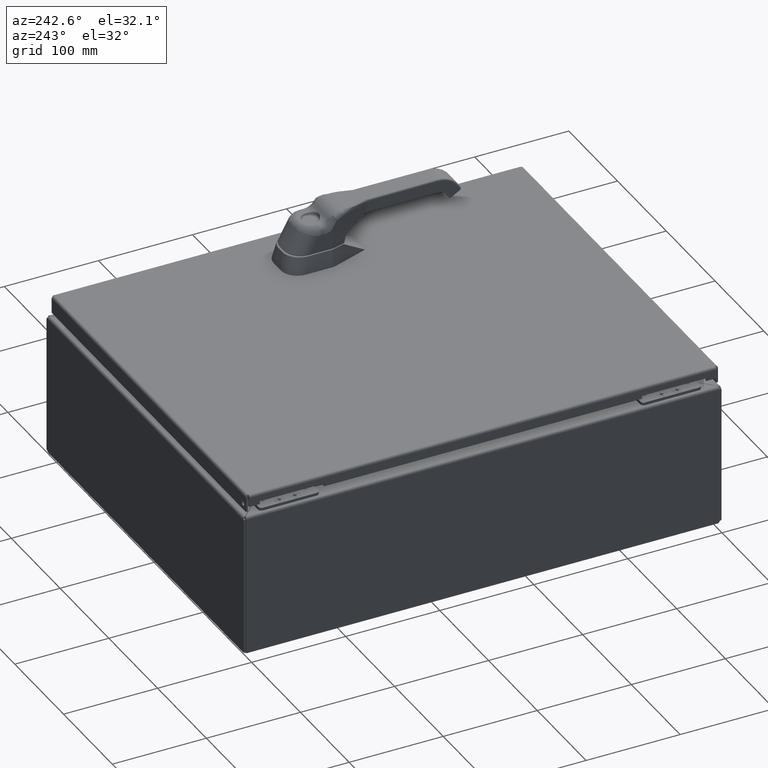
[diagram: clean part render]
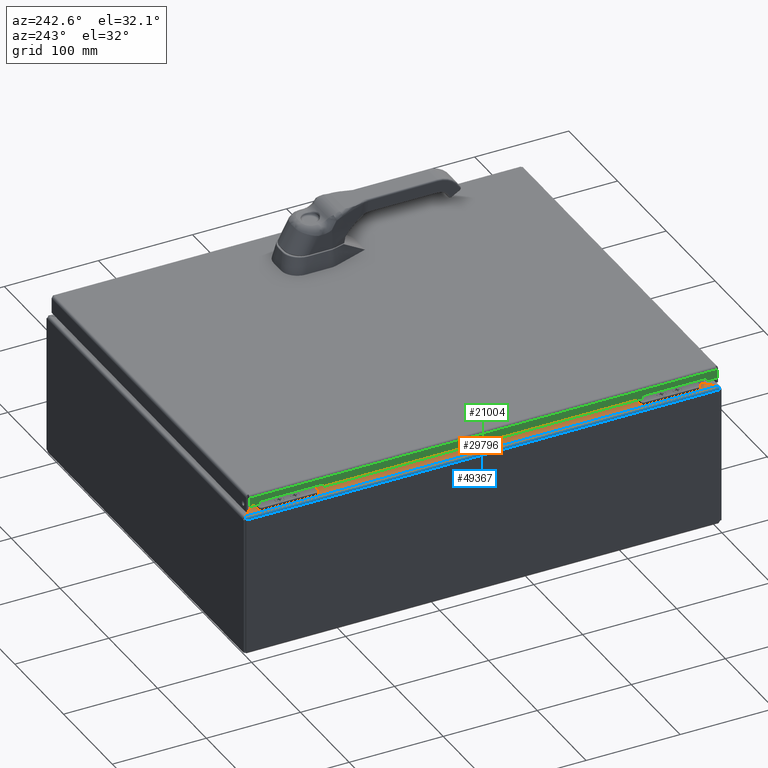
[diagram: same view with three faces highlighted in distinct colors, each labeled with its STEP entity id]
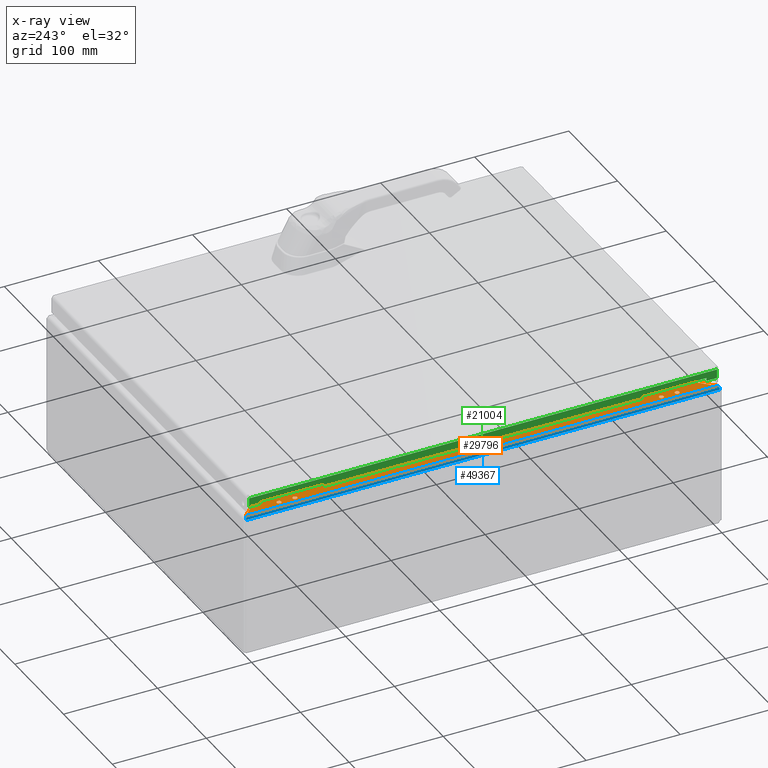
[diagram: x-ray of the same camera — body ghosted, the three highlighted faces saturated]
A machine part, auxiliary view with three faces highlighted in distinct colors.
The next image is the same camera in x-ray (body ghosted, the three faces saturated) — at least one of them is partly hidden behind the body in this view.
Their STEP definitions:

[orange] entity #29796 — the highlighted planar face has unit normal (0, 0, -1).
#594 = EDGE_CURVE ( 'NONE', #44777, #44777, #28194, .T. ) ;
#1286 = FACE_OUTER_BOUND ( 'NONE', #35567, .T. ) ;
#2015 = VERTEX_POINT ( 'NONE', #73172 ) ;
#3022 = FACE_BOUND ( 'NONE', #25610, .T. ) ;
#3765 = CARTESIAN_POINT ( 'NONE',  ( 0.1052500000000079761, 19.88370145654398868, 6.000000000000007994 ) ) ;
#3836 = CARTESIAN_POINT ( 'NONE',  ( 0.3059999999999980513, 18.33000000000002316, 6.000000000000008882 ) ) ;
#4111 = CARTESIAN_POINT ( 'NONE',  ( 0.7072499999999630749, 9.999999999999989342, 6.000000000000007994 ) ) ;
#4832 = CARTESIAN_POINT ( 'NONE',  ( 0.4157330788845780556, 9.999999999999989342, 6.000000000000007994 ) ) ;
#5647 = LINE ( 'NONE', #31768, #46651 ) ;
#6474 = VECTOR ( 'NONE', #44696, 39.37007874015748143 ) ;
#8261 = VERTEX_POINT ( 'NONE', #22058 ) ;
#8726 = EDGE_LOOP ( 'NONE', ( #18013 ) ) ;
#8826 = CARTESIAN_POINT ( 'NONE',  ( 0.3999999999999980793, 17.67000000000002302, 6.000000000000007994 ) ) ;
#9071 = DIRECTION ( 'NONE',  ( 9.450717000000000407E-15, -0.0000000000000000000, 1.000000000000000000 ) ) ;
#10475 = DIRECTION ( 'NONE',  ( -0.7071067811865446862, -0.7071067811865503483, 0.0000000000000000000 ) ) ;
#10523 = DIRECTION ( 'NONE',  ( -1.000000000000000000, 0.0000000000000000000, -0.0000000000000000000 ) ) ;
#11763 = LINE ( 'NONE', #3765, #70630 ) ;
#12773 = EDGE_CURVE ( 'NONE', #72383, #72383, #56831, .T. ) ;
#13642 = FACE_BOUND ( 'NONE', #29693, .T. ) ;
#13796 = CARTESIAN_POINT ( 'NONE',  ( 0.3060000000000021037, 1.669999999999993490, 6.000000000000007105 ) ) ;
#13859 = DIRECTION ( 'NONE',  ( -1.000000000000000000, 0.0000000000000000000, 1.162488507942239560E-14 ) ) ;
#14007 = AXIS2_PLACEMENT_3D ( 'NONE', #70191, #48011, #13859 ) ;
#15415 = ORIENTED_EDGE ( 'NONE', *, *, #594, .F. ) ;
#16332 = FACE_BOUND ( 'NONE', #22762, .T. ) ;
#18013 = ORIENTED_EDGE ( 'NONE', *, *, #61518, .F. ) ;
#18147 = FACE_BOUND ( 'NONE', #8726, .T. ) ;
#19275 = ORIENTED_EDGE ( 'NONE', *, *, #29822, .F. ) ;
#20092 = AXIS2_PLACEMENT_3D ( 'NONE', #4832, #33467, #10523 ) ;
#22058 = CARTESIAN_POINT ( 'NONE',  ( 0.7072499999999870557, 0.7182985434560149596, 6.000000000000006217 ) ) ;
#22762 = EDGE_LOOP ( 'NONE', ( #37108 ) ) ;
#25362 = VERTEX_POINT ( 'NONE', #36302 ) ;
#25610 = EDGE_LOOP ( 'NONE', ( #68506 ) ) ;
#26397 = DIRECTION ( 'NONE',  ( 0.7071067811865507924, -0.7071067811865442421, 0.0000000000000000000 ) ) ;
#28194 = CIRCLE ( 'NONE', #14007, 0.09400000000000001410 ) ;
#28811 = ORIENTED_EDGE ( 'NONE', *, *, #30346, .F. ) ;
#29693 = EDGE_LOOP ( 'NONE', ( #15415 ) ) ;
#29796 = ADVANCED_FACE ( 'NONE', ( #13642, #18147, #3022, #16332, #1286 ), #49461, .F. ) ;
#29822 = EDGE_CURVE ( 'NONE', #25362, #8261, #44822, .T. ) ;
#30346 = EDGE_CURVE ( 'NONE', #71353, #25362, #11763, .T. ) ;
#31768 = CARTESIAN_POINT ( 'NONE',  ( 0.1052500000000089614, 19.88370145654398868, 6.000000000000011546 ) ) ;
#32618 = CARTESIAN_POINT ( 'NONE',  ( 0.3059999999999980513, 17.67000000000002302, 6.000000000000008882 ) ) ;
#33467 = DIRECTION ( 'NONE',  ( 0.0000000000000000000, 0.0000000000000000000, -1.000000000000000000 ) ) ;
#33870 = ORIENTED_EDGE ( 'NONE', *, *, #55869, .F. ) ;
#35567 = EDGE_LOOP ( 'NONE', ( #28811, #63322, #33870, #19275 ) ) ;
#36302 = CARTESIAN_POINT ( 'NONE',  ( 0.7072499999999380949, 19.28170145654401324, 6.000000000000006217 ) ) ;
#36559 = AXIS2_PLACEMENT_3D ( 'NONE', #66926, #67925, #38524 ) ;
#37108 = ORIENTED_EDGE ( 'NONE', *, *, #59327, .F. ) ;
#37305 = CARTESIAN_POINT ( 'NONE',  ( 0.4000000000000020761, 2.329999999999992966, 6.000000000000007105 ) ) ;
#37424 = CARTESIAN_POINT ( 'NONE',  ( 0.1052500000000070046, 19.88370145654398868, 6.000000000000010658 ) ) ;
#37474 = DIRECTION ( 'NONE',  ( -3.061382000000000093E-16, 1.000000000000000000, 1.873333999999999834E-16 ) ) ;
#38037 = AXIS2_PLACEMENT_3D ( 'NONE', #8826, #9071, #65647 ) ;
#38524 = DIRECTION ( 'NONE',  ( -1.000000000000000000, 0.0000000000000000000, 1.162488507942239560E-14 ) ) ;
#39107 = VERTEX_POINT ( 'NONE', #55761 ) ;
#43295 = DIRECTION ( 'NONE',  ( -1.000000000000000000, 0.0000000000000000000, 1.162488507942239560E-14 ) ) ;
#44696 = DIRECTION ( 'NONE',  ( -0.0000000000000000000, -1.000000000000000000, -0.0000000000000000000 ) ) ;
#44777 = VERTEX_POINT ( 'NONE', #13796 ) ;
#44822 = LINE ( 'NONE', #4111, #6474 ) ;
#46651 = VECTOR ( 'NONE', #37474, 39.37007874015748143 ) ;
#48011 = DIRECTION ( 'NONE',  ( 9.450717000000000407E-15, -0.0000000000000000000, 1.000000000000000000 ) ) ;
#49461 = PLANE ( 'NONE',  #20092 ) ;
#50878 = CARTESIAN_POINT ( 'NONE',  ( 0.7072500000000121467, 0.7182985434560396065, 6.000000000000007994 ) ) ;
#52309 = LINE ( 'NONE', #50878, #71853 ) ;
#52837 = CIRCLE ( 'NONE', #38037, 0.09400000000000001410 ) ;
#53447 = VERTEX_POINT ( 'NONE', #32618 ) ;
#55761 = CARTESIAN_POINT ( 'NONE',  ( 0.3060000000000021037, 2.329999999999992966, 6.000000000000007994 ) ) ;
#55869 = EDGE_CURVE ( 'NONE', #8261, #2015, #52309, .T. ) ;
#56831 = CIRCLE ( 'NONE', #36559, 0.09400000000000001410 ) ;
#59327 = EDGE_CURVE ( 'NONE', #53447, #53447, #52837, .T. ) ;
#61518 = EDGE_CURVE ( 'NONE', #39107, #39107, #71785, .T. ) ;
#63234 = EDGE_CURVE ( 'NONE', #2015, #71353, #5647, .T. ) ;
#63322 = ORIENTED_EDGE ( 'NONE', *, *, #63234, .F. ) ;
#65647 = DIRECTION ( 'NONE',  ( -1.000000000000000000, 0.0000000000000000000, 1.162488507942239560E-14 ) ) ;
#66854 = AXIS2_PLACEMENT_3D ( 'NONE', #37305, #71202, #43295 ) ;
#66926 = CARTESIAN_POINT ( 'NONE',  ( 0.3999999999999980793, 18.33000000000002316, 6.000000000000007994 ) ) ;
#67925 = DIRECTION ( 'NONE',  ( 9.450717000000000407E-15, -0.0000000000000000000, 1.000000000000000000 ) ) ;
#68506 = ORIENTED_EDGE ( 'NONE', *, *, #12773, .F. ) ;
#70191 = CARTESIAN_POINT ( 'NONE',  ( 0.4000000000000020761, 1.669999999999993490, 6.000000000000006217 ) ) ;
#70630 = VECTOR ( 'NONE', #26397, 39.37007874015748143 ) ;
#71202 = DIRECTION ( 'NONE',  ( 9.450717000000000407E-15, -0.0000000000000000000, 1.000000000000000000 ) ) ;
#71353 = VERTEX_POINT ( 'NONE', #37424 ) ;
#71785 = CIRCLE ( 'NONE', #66854, 0.09400000000000001410 ) ;
#71853 = VECTOR ( 'NONE', #10475, 39.37007874015748143 ) ;
#72383 = VERTEX_POINT ( 'NONE', #3836 ) ;
#73172 = CARTESIAN_POINT ( 'NONE',  ( 0.1052500000000138186, 0.1162985434560376702, 6.000000000000008882 ) ) ;

[blue] entity #49367 — the highlighted cylindrical surface (edge-blend (fillet) strip) has radius 2.6734 mm, axis along (-0, 1, 0).
#2015 = VERTEX_POINT ( 'NONE', #73172 ) ;
#2176 = CARTESIAN_POINT ( 'NONE',  ( 0.05333817569947117698, 0.1009154253561897197, 5.986564154829374651 ) ) ;
#3449 = CARTESIAN_POINT ( 'NONE',  ( 0.03656764213985888579, 19.90409132094917766, 5.974797827221287605 ) ) ;
#5647 = LINE ( 'NONE', #31768, #46651 ) ;
#6421 = ORIENTED_EDGE ( 'NONE', *, *, #31526, .T. ) ;
#7594 = CARTESIAN_POINT ( 'NONE',  ( 0.09172984658913649336, 0.1122850914127169059, 5.999347103297099970 ) ) ;
#8140 = CARTESIAN_POINT ( 'NONE',  ( 0.1052500000000070046, 19.88370145654398868, 6.000000000000010658 ) ) ;
#8218 = ORIENTED_EDGE ( 'NONE', *, *, #63234, .T. ) ;
#8808 = VERTEX_POINT ( 'NONE', #58120 ) ;
#8880 = CARTESIAN_POINT ( 'NONE',  ( 0.07855251529611152750, 19.89162361708468651, 5.996779246795641782 ) ) ;
#9120 = CARTESIAN_POINT ( 'NONE',  ( 0.01107565628327179287, 19.91165976922211200, 5.942260487442552197 ) ) ;
#13351 = CARTESIAN_POINT ( 'NONE',  ( 0.1052500000000138186, 0.1162985434560376702, 6.000000000000008882 ) ) ;
#13894 = CARTESIAN_POINT ( 'NONE',  ( 0.01448397748349637866, 19.91064595259070558, 5.948481440259801190 ) ) ;
#14887 = CARTESIAN_POINT ( 'NONE',  ( 0.05338231674400383681, 19.89909276795443205, 5.986584044851952058 ) ) ;
#18092 = CARTESIAN_POINT ( 'NONE',  ( 0.005602188232104419151, 0.08672452152717059770, 5.929342590331775575 ) ) ;
#18330 = CARTESIAN_POINT ( 'NONE',  ( 0.07844737897840761698, 0.1083496090828573039, 5.996754745344370363 ) ) ;
#18834 = CARTESIAN_POINT ( 'NONE',  ( 0.04185312320020528887, 0.09750101646040232328, 5.979044202299285793 ) ) ;
#19711 = CYLINDRICAL_SURFACE ( 'NONE', #25275, 0.1052500000000080177 ) ;
#20735 = ORIENTED_EDGE ( 'NONE', *, *, #24122, .T. ) ;
#24122 = EDGE_CURVE ( 'NONE', #59973, #8808, #62734, .T. ) ;
#24545 = CARTESIAN_POINT ( 'NONE',  ( 8.333103465537039176E-16, 0.08504854345603903021, 5.901851888841690652 ) ) ;
#25091 = CARTESIAN_POINT ( 'NONE',  ( -6.257239137441256334E-15, 19.91495145654399579, 5.908966598331538478 ) ) ;
#25275 = AXIS2_PLACEMENT_3D ( 'NONE', #39407, #45163, #57349 ) ;
#26066 = CARTESIAN_POINT ( 'NONE',  ( 0.05938206885190179529, 19.89731025605667369, 5.989724159756274702 ) ) ;
#29560 = CARTESIAN_POINT ( 'NONE',  ( 0.0007113966464443337084, 0.08526672560262855971, 5.908827113702513678 ) ) ;
#29816 = CARTESIAN_POINT ( 'NONE',  ( 0.003493468438056435317, 0.08609911766482412909, 5.922536561604283989 ) ) ;
#30079 = CARTESIAN_POINT ( 'NONE',  ( -4.243609000000000519E-15, 9.999999999999998224, 5.894750000000005485 ) ) ;
#30547 = CARTESIAN_POINT ( 'NONE',  ( 0.01104629261095634724, 0.08833245156314142865, 5.942205191603781245 ) ) ;
#31089 = CARTESIAN_POINT ( 'NONE',  ( 0.04200277419865727085, 19.90247602027391949, 5.979151047319619217 ) ) ;
#31290 = FACE_OUTER_BOUND ( 'NONE', #33253, .T. ) ;
#31526 = EDGE_CURVE ( 'NONE', #71353, #59973, #40426, .T. ) ;
#31768 = CARTESIAN_POINT ( 'NONE',  ( 0.1052500000000089614, 19.88370145654398868, 6.000000000000011546 ) ) ;
#31819 = CARTESIAN_POINT ( 'NONE',  ( 0.09174541890385372322, 19.88771050815946850, 5.999346124118528856 ) ) ;
#33253 = EDGE_LOOP ( 'NONE', ( #20735, #40914, #8218, #6421 ) ) ;
#36258 = CARTESIAN_POINT ( 'NONE',  ( 0.05934674742644494017, 0.1026961439788886404, 5.989703400993503735 ) ) ;
#36824 = CARTESIAN_POINT ( 'NONE',  ( -2.787338656035568371E-15, 19.91495145654399224, 5.894750000000002821 ) ) ;
#37424 = CARTESIAN_POINT ( 'NONE',  ( 0.1052500000000070046, 19.88370145654398868, 6.000000000000010658 ) ) ;
#37474 = DIRECTION ( 'NONE',  ( -3.061382000000000093E-16, 1.000000000000000000, 1.873333999999999834E-16 ) ) ;
#38673 = VECTOR ( 'NONE', #64940, 39.37007874015748143 ) ;
#39407 = CARTESIAN_POINT ( 'NONE',  ( 0.1052500000000060193, 19.88370145654398868, 5.894750000000002821 ) ) ;
#40426 = B_SPLINE_CURVE_WITH_KNOTS ( 'NONE', 3,
 ( #8140, #48302, #31819, #8880, #43029, #26066, #14887, #31089, #3449, #48046, #48776, #13894, #9120, #48543, #25091, #64979 ),
 .UNSPECIFIED., .F., .F.,
 ( 4, 2, 2, 2, 2, 2, 2, 4 ),
 ( 4.770489558936219510E-18, 0.0005332726986031560094, 0.001066545397206307248, 0.001599818095809458487, 0.002133090794412609726, 0.002666363493015761182, 0.003199636191618912204, 0.004266181588825215115 ),
 .UNSPECIFIED. ) ;
#40914 = ORIENTED_EDGE ( 'NONE', *, *, #58186, .T. ) ;
#41756 = CARTESIAN_POINT ( 'NONE',  ( -8.981565850215665777E-17, 0.08504854345603886367, 5.894750000000002821 ) ) ;
#43029 = CARTESIAN_POINT ( 'NONE',  ( 0.07200623887873873474, 19.89356431199759001, 5.994844008190948870 ) ) ;
#45163 = DIRECTION ( 'NONE',  ( -3.061382000000000093E-16, 1.000000000000000000, 1.873334000000000081E-16 ) ) ;
#46504 = CARTESIAN_POINT ( 'NONE',  ( 0.09844969206094432435, 0.1142794496499020956, 6.000000000000010658 ) ) ;
#46651 = VECTOR ( 'NONE', #37474, 39.37007874015748143 ) ;
#47353 = B_SPLINE_CURVE_WITH_KNOTS ( 'NONE', 3,
 ( #41756, #24545, #29560, #29816, #18092, #30547, #53223, #70405, #52250, #52503, #18834, #2176, #36258, #69426, #18330, #7594, #46504, #13351 ),
 .UNSPECIFIED., .F., .F.,
 ( 4, 2, 2, 2, 2, 2, 2, 2, 4 ),
 ( 2.805548778070112069E-17, 0.0005334895178968591337, 0.001066979035793690078, 0.001600468553690521023, 0.002133958071587352401, 0.002667447589484183562, 0.003200937107381014290, 0.003734426625277845451, 0.004267916143174676179 ),
 .UNSPECIFIED. ) ;
#48046 = CARTESIAN_POINT ( 'NONE',  ( 0.02672914486104089812, 19.90701073980577718, 5.965172980853723494 ) ) ;
#48302 = CARTESIAN_POINT ( 'NONE',  ( 0.09844436907964697336, 19.88572213080775342, 6.000000000000012434 ) ) ;
#48543 = CARTESIAN_POINT ( 'NONE',  ( 0.002917926003489944818, 19.91408013731345861, 5.923028487540740628 ) ) ;
#48776 = CARTESIAN_POINT ( 'NONE',  ( 0.02230839213848706190, 19.90832195467457311, 5.959913089254625262 ) ) ;
#49367 = ADVANCED_FACE ( 'NONE', ( #31290 ), #19711, .T. ) ;
#52250 = CARTESIAN_POINT ( 'NONE',  ( 0.02670098244263335169, 0.09297657607660395063, 5.965138531854984549 ) ) ;
#52503 = CARTESIAN_POINT ( 'NONE',  ( 0.03648812802876252176, 0.09590002717816806244, 5.974726862522475201 ) ) ;
#53223 = CARTESIAN_POINT ( 'NONE',  ( 0.01437027116656764032, 0.08931214150875187163, 5.948292639036372620 ) ) ;
#57349 = DIRECTION ( 'NONE',  ( -1.000000000000000000, 0.0000000000000000000, 0.0000000000000000000 ) ) ;
#58120 = CARTESIAN_POINT ( 'NONE',  ( -8.981565850215665777E-17, 0.08504854345603886367, 5.894750000000002821 ) ) ;
#58186 = EDGE_CURVE ( 'NONE', #8808, #2015, #47353, .T. ) ;
#59973 = VERTEX_POINT ( 'NONE', #36824 ) ;
#62734 = LINE ( 'NONE', #30079, #38673 ) ;
#63234 = EDGE_CURVE ( 'NONE', #2015, #71353, #5647, .T. ) ;
#64940 = DIRECTION ( 'NONE',  ( 0.0000000000000000000, -1.000000000000000000, -0.0000000000000000000 ) ) ;
#64979 = CARTESIAN_POINT ( 'NONE',  ( -2.787338656035568371E-15, 19.91495145654399224, 5.894750000000002821 ) ) ;
#69426 = CARTESIAN_POINT ( 'NONE',  ( 0.07187070447956074581, 0.1064039170660036893, 5.994795387637934070 ) ) ;
#70405 = CARTESIAN_POINT ( 'NONE',  ( 0.02220643772705589020, 0.09163494738711268350, 5.959786190485276691 ) ) ;
#71353 = VERTEX_POINT ( 'NONE', #37424 ) ;
#73172 = CARTESIAN_POINT ( 'NONE',  ( 0.1052500000000138186, 0.1162985434560376702, 6.000000000000008882 ) ) ;

[green] entity #21004 — the highlighted planar face has unit normal (1, -0, 0).
#957 = VERTEX_POINT ( 'NONE', #29216 ) ;
#1266 = LINE ( 'NONE', #24626, #9167 ) ;
#1604 = EDGE_CURVE ( 'NONE', #38199, #25776, #1266, .T. ) ;
#2515 = DIRECTION ( 'NONE',  ( -1.958920000000098350E-16, -1.000000000000000000, 1.212887999999866523E-16 ) ) ;
#3691 = DIRECTION ( 'NONE',  ( -6.934358000000013587E-14, 1.212888000000002355E-16, 1.000000000000000000 ) ) ;
#3700 = ORIENTED_EDGE ( 'NONE', *, *, #34020, .T. ) ;
#4738 = VECTOR ( 'NONE', #39090, 39.37007874015748143 ) ;
#4857 = CARTESIAN_POINT ( 'NONE',  ( -1.551689660401301555E-13, 0.6570000000001361418, 6.437496062991092671 ) ) ;
#4904 = CARTESIAN_POINT ( 'NONE',  ( -1.682818364097186158E-13, 3.344000000000137529, 6.562496062991091783 ) ) ;
#5269 = CARTESIAN_POINT ( 'NONE',  ( -1.551689660401301555E-13, 16.65600000000014447, 6.437496062991092671 ) ) ;
#5565 = ORIENTED_EDGE ( 'NONE', *, *, #14860, .T. ) ;
#6807 = VECTOR ( 'NONE', #28016, 39.37007874015748143 ) ;
#8060 = EDGE_CURVE ( 'NONE', #19737, #41669, #57933, .T. ) ;
#8811 = DIRECTION ( 'NONE',  ( -1.958920000000098350E-16, -1.000000000000000000, 1.212887999999866523E-16 ) ) ;
#9113 = CARTESIAN_POINT ( 'NONE',  ( -1.398706172756102768E-13, 19.78995145654410237, 6.187496062991092671 ) ) ;
#9167 = VECTOR ( 'NONE', #47073, 39.37007874015748143 ) ;
#9184 = EDGE_LOOP ( 'NONE', ( #3700, #25608, #63507, #5565, #63115, #66605, #34124, #51245, #34582, #46572, #11548, #60265 ) ) ;
#9750 = CARTESIAN_POINT ( 'NONE',  ( -1.573544444350615740E-13, 19.78995145654410592, 6.437496062991090007 ) ) ;
#10215 = EDGE_CURVE ( 'NONE', #34508, #957, #40210, .T. ) ;
#10363 = LINE ( 'NONE', #4857, #6807 ) ;
#10926 = CARTESIAN_POINT ( 'NONE',  ( -1.617254012249243857E-13, 0.2100485434561751019, 6.437496062991093559 ) ) ;
#11386 = VECTOR ( 'NONE', #66544, 39.37007874015748143 ) ;
#11548 = ORIENTED_EDGE ( 'NONE', *, *, #10215, .F. ) ;
#11562 = DIRECTION ( 'NONE',  ( 1.000000000000000000, -1.958920000000014287E-16, 6.934358000000013587E-14 ) ) ;
#12738 = LINE ( 'NONE', #42107, #44843 ) ;
#13939 = CARTESIAN_POINT ( 'NONE',  ( -1.573544444350615740E-13, 19.34300000000014563, 6.437496062991092671 ) ) ;
#14860 = EDGE_CURVE ( 'NONE', #34634, #19737, #62737, .T. ) ;
#15217 = EDGE_CURVE ( 'NONE', #41669, #50505, #12738, .T. ) ;
#15248 = VERTEX_POINT ( 'NONE', #13939 ) ;
#17335 = EDGE_CURVE ( 'NONE', #50505, #57460, #10363, .T. ) ;
#17923 = CARTESIAN_POINT ( 'NONE',  ( -1.573544444350615740E-13, 19.34300000000014563, 6.437496062991092671 ) ) ;
#19737 = VERTEX_POINT ( 'NONE', #39318 ) ;
#19825 = CARTESIAN_POINT ( 'NONE',  ( -1.529834876451987371E-13, 16.65600000000014447, 6.437496062991094448 ) ) ;
#21004 = ADVANCED_FACE ( 'NONE', ( #60566 ), #34255, .F. ) ;
#22290 = VECTOR ( 'NONE', #3691, 39.37007874015748143 ) ;
#22588 = CARTESIAN_POINT ( 'NONE',  ( -1.486125308553359254E-13, 0.2100485434561737419, 6.437496062991093559 ) ) ;
#22816 = DIRECTION ( 'NONE',  ( -1.958920000000098350E-16, -1.000000000000000000, 1.212887999999866523E-16 ) ) ;
#24626 = CARTESIAN_POINT ( 'NONE',  ( -1.617254012249243857E-13, 16.65600000000014447, 6.562496062991095336 ) ) ;
#25067 = VECTOR ( 'NONE', #54724, 39.37007874015748143 ) ;
#25608 = ORIENTED_EDGE ( 'NONE', *, *, #1604, .T. ) ;
#25776 = VERTEX_POINT ( 'NONE', #43508 ) ;
#26558 = LINE ( 'NONE', #44365, #11386 ) ;
#27751 = LINE ( 'NONE', #19825, #48310 ) ;
#28016 = DIRECTION ( 'NONE',  ( 6.934358000000013587E-14, -1.212888000000002355E-16, -1.000000000000000000 ) ) ;
#29216 = CARTESIAN_POINT ( 'NONE',  ( -1.726527931995814275E-13, 19.78995145654410592, 6.812246062991097695 ) ) ;
#29976 = EDGE_CURVE ( 'NONE', #34508, #15248, #66180, .T. ) ;
#31668 = CARTESIAN_POINT ( 'NONE',  ( -1.595399228299929672E-13, 0.6570000000001361418, 6.437496062991092671 ) ) ;
#31860 = CARTESIAN_POINT ( 'NONE',  ( -1.704673148046500343E-13, 3.344000000000137529, 6.562496062991091783 ) ) ;
#31911 = VERTEX_POINT ( 'NONE', #46108 ) ;
#32395 = LINE ( 'NONE', #10926, #4738 ) ;
#32855 = EDGE_CURVE ( 'NONE', #25776, #34634, #27751, .T. ) ;
#34020 = EDGE_CURVE ( 'NONE', #15248, #38199, #61564, .T. ) ;
#34124 = ORIENTED_EDGE ( 'NONE', *, *, #17335, .T. ) ;
#34255 = PLANE ( 'NONE',  #57143 ) ;
#34508 = VERTEX_POINT ( 'NONE', #9750 ) ;
#34582 = ORIENTED_EDGE ( 'NONE', *, *, #66394, .F. ) ;
#34634 = VERTEX_POINT ( 'NONE', #5269 ) ;
#35866 = VECTOR ( 'NONE', #8811, 39.37007874015748143 ) ;
#38199 = VERTEX_POINT ( 'NONE', #61019 ) ;
#39090 = DIRECTION ( 'NONE',  ( -1.958920000000098350E-16, -1.000000000000000000, 1.212887999999866523E-16 ) ) ;
#39318 = CARTESIAN_POINT ( 'NONE',  ( -1.617254012249243857E-13, 3.344000000000137529, 6.437496062991092671 ) ) ;
#40210 = LINE ( 'NONE', #9113, #25067 ) ;
#41669 = VERTEX_POINT ( 'NONE', #4904 ) ;
#42107 = CARTESIAN_POINT ( 'NONE',  ( -1.639108796198558042E-13, 0.6570000000001361418, 6.562496062991091783 ) ) ;
#42775 = VECTOR ( 'NONE', #43814, 39.37007874015748143 ) ;
#43508 = CARTESIAN_POINT ( 'NONE',  ( -1.639108796198558042E-13, 16.65600000000014447, 6.562496062991095336 ) ) ;
#43814 = DIRECTION ( 'NONE',  ( -6.934358000000013587E-14, 1.212888000000002355E-16, 1.000000000000000000 ) ) ;
#44365 = CARTESIAN_POINT ( 'NONE',  ( -1.682818364097186158E-13, 0.2100485434561731313, 6.812246062991090589 ) ) ;
#44843 = VECTOR ( 'NONE', #2515, 39.37007874015748143 ) ;
#45713 = CARTESIAN_POINT ( 'NONE',  ( -1.617254012249243857E-13, 10.00000000000013678, 6.542694675567507723 ) ) ;
#45836 = VECTOR ( 'NONE', #68281, 39.37007874015748143 ) ;
#45882 = EDGE_CURVE ( 'NONE', #57460, #72101, #32395, .T. ) ;
#46108 = CARTESIAN_POINT ( 'NONE',  ( -1.682818364097186158E-13, 0.2100485434561731313, 6.812246062991095030 ) ) ;
#46572 = ORIENTED_EDGE ( 'NONE', *, *, #55101, .F. ) ;
#47073 = DIRECTION ( 'NONE',  ( -1.958920000000098350E-16, -1.000000000000000000, 1.212887999999866523E-16 ) ) ;
#48131 = CARTESIAN_POINT ( 'NONE',  ( -1.660963580147871974E-13, 0.6570000000001361418, 6.562496062991091783 ) ) ;
#48310 = VECTOR ( 'NONE', #59412, 39.37007874015748143 ) ;
#49856 = VECTOR ( 'NONE', #22816, 39.37007874015748143 ) ;
#50505 = VERTEX_POINT ( 'NONE', #48131 ) ;
#51245 = ORIENTED_EDGE ( 'NONE', *, *, #45882, .T. ) ;
#51455 = DIRECTION ( 'NONE',  ( 6.934358000000013587E-14, -1.212888000000002355E-16, -1.000000000000000000 ) ) ;
#54724 = DIRECTION ( 'NONE',  ( -6.934358000000013587E-14, 1.212888000000002355E-16, 1.000000000000000000 ) ) ;
#55101 = EDGE_CURVE ( 'NONE', #957, #31911, #63168, .T. ) ;
#57143 = AXIS2_PLACEMENT_3D ( 'NONE', #45713, #11562, #51455 ) ;
#57460 = VERTEX_POINT ( 'NONE', #31668 ) ;
#57547 = CARTESIAN_POINT ( 'NONE',  ( -1.617254012249243857E-13, 3.344000000000137529, 6.437496062991092671 ) ) ;
#57933 = LINE ( 'NONE', #31860, #42775 ) ;
#59412 = DIRECTION ( 'NONE',  ( 6.934358000000013587E-14, -1.212888000000002355E-16, -1.000000000000000000 ) ) ;
#60265 = ORIENTED_EDGE ( 'NONE', *, *, #29976, .T. ) ;
#60566 = FACE_OUTER_BOUND ( 'NONE', #9184, .T. ) ;
#61019 = CARTESIAN_POINT ( 'NONE',  ( -1.639108796198558042E-13, 19.34300000000014563, 6.562496062991095336 ) ) ;
#61564 = LINE ( 'NONE', #72422, #22290 ) ;
#62737 = LINE ( 'NONE', #57547, #45836 ) ;
#63115 = ORIENTED_EDGE ( 'NONE', *, *, #8060, .T. ) ;
#63168 = LINE ( 'NONE', #73446, #49856 ) ;
#63507 = ORIENTED_EDGE ( 'NONE', *, *, #32855, .T. ) ;
#66180 = LINE ( 'NONE', #17923, #35866 ) ;
#66394 = EDGE_CURVE ( 'NONE', #31911, #72101, #26558, .T. ) ;
#66544 = DIRECTION ( 'NONE',  ( 6.934358000000013587E-14, -1.212888000000002355E-16, -1.000000000000000000 ) ) ;
#66605 = ORIENTED_EDGE ( 'NONE', *, *, #15217, .T. ) ;
#68281 = DIRECTION ( 'NONE',  ( -1.958920000000098350E-16, -1.000000000000000000, 1.212887999999866523E-16 ) ) ;
#72101 = VERTEX_POINT ( 'NONE', #22588 ) ;
#72422 = CARTESIAN_POINT ( 'NONE',  ( -1.660963580147871974E-13, 19.34300000000014563, 6.562496062991095336 ) ) ;
#73446 = CARTESIAN_POINT ( 'NONE',  ( -1.682818364097186158E-13, 0.2100485434561731313, 6.812246062991099471 ) ) ;